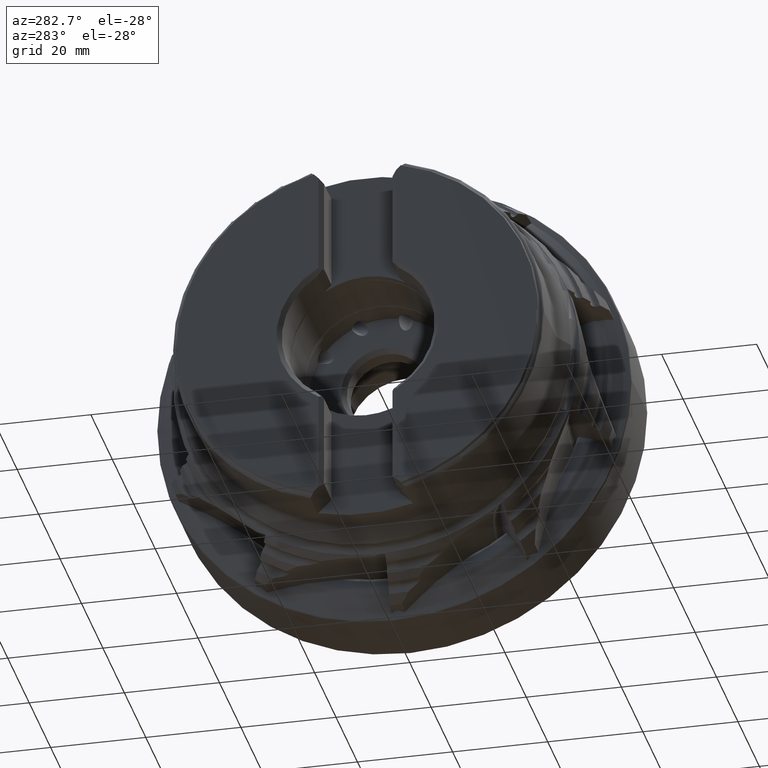
[diagram: clean part render]
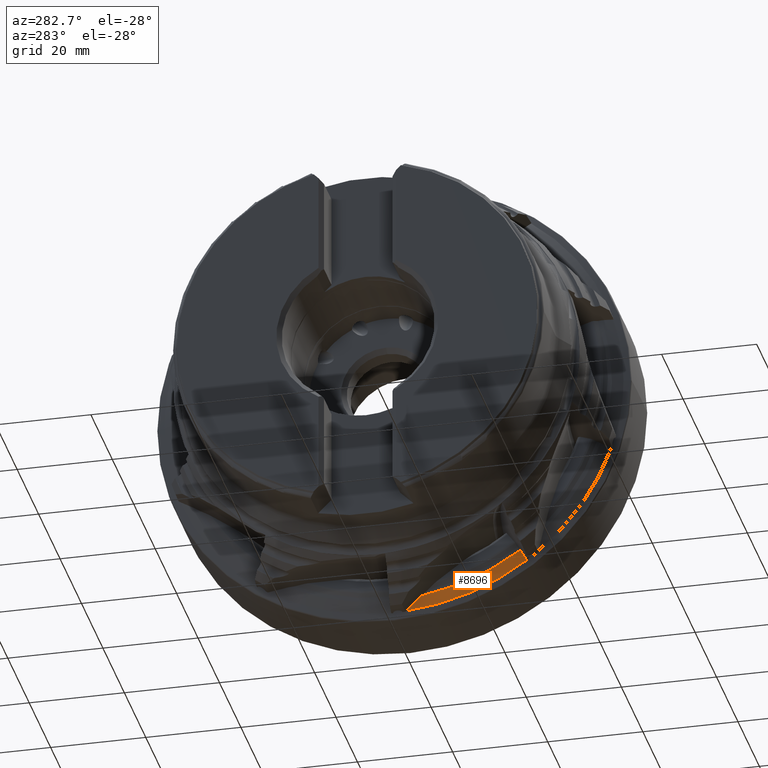
[diagram: same view with one face highlighted and labeled with its STEP entity id]
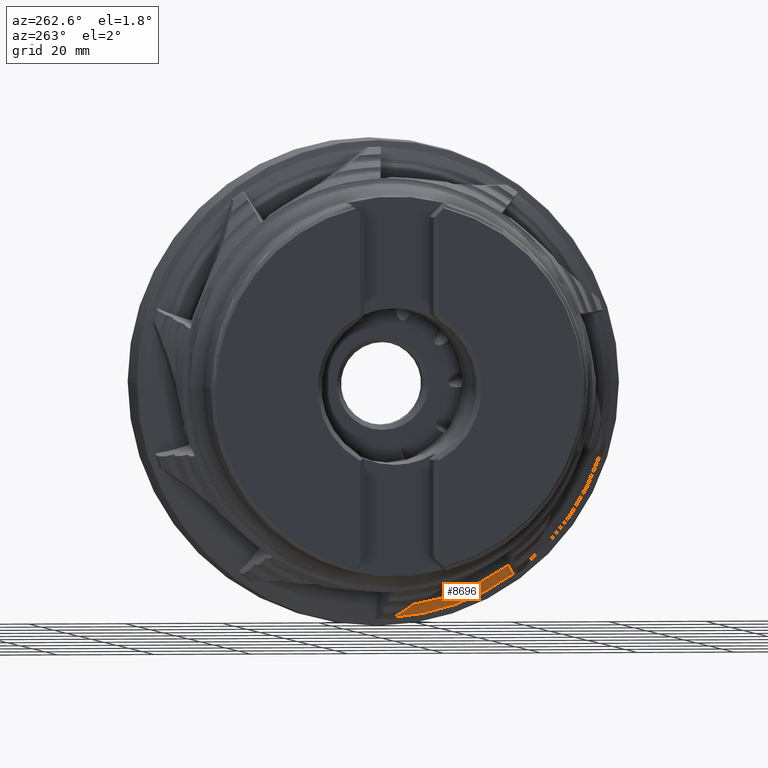
[diagram: same view with one face highlighted and labeled with its STEP entity id]
A machine part, auxiliary view. The second image highlights one B-rep face of the part: STEP entity #8696.
A second angle (auxiliary view) of the same face is appended — the face is thin or edge-on in the first view.
In plain terms, the highlighted conical surface has half-angle 62.043 deg.
Its self-contained STEP definition (entity closure, byte-faithful):
#105 = VERTEX_POINT ( 'NONE', #9441 ) ;
#1238 = CARTESIAN_POINT ( 'NONE',  ( -14.76938182322128768, -28.03654574088306006, -39.30826597944864886 ) ) ;
#1284 = CARTESIAN_POINT ( 'NONE',  ( -14.79345574564933763, -27.89425719486472488, -39.35378098058932750 ) ) ;
#1458 = CARTESIAN_POINT ( 'NONE',  ( -14.76938182322129478, 5.345225264192478146E-15, 0.0000000000000000000 ) ) ;
#2756 = CARTESIAN_POINT ( 'NONE',  ( -15.53865546071779136, -27.15432477313284565, -38.15717237038244036 ) ) ;
#3130 = AXIS2_PLACEMENT_3D ( 'NONE', #1458, #14733, #3147 ) ;
#3147 = DIRECTION ( 'NONE',  ( -3.233583993939052339E-16, 1.000000000000000000, 0.0000000000000000000 ) ) ;
#3645 = ORIENTED_EDGE ( 'NONE', *, *, #14075, .F. ) ;
#4402 = CARTESIAN_POINT ( 'NONE',  ( -15.91121431757420623, -5.936858987787736908, -45.74737255134296987 ) ) ;
#4977 = VERTEX_POINT ( 'NONE', #20917 ) ;
#5077 = EDGE_CURVE ( 'NONE', #18457, #6953, #9474, .T. ) ;
#5170 = ORIENTED_EDGE ( 'NONE', *, *, #6410, .F. ) ;
#5775 = CARTESIAN_POINT ( 'NONE',  ( -15.55390023599945337, -4.799266396920068622, -46.57388194815214177 ) ) ;
#5825 = EDGE_CURVE ( 'NONE', #105, #14316, #11689, .T. ) ;
#6009 = CARTESIAN_POINT ( 'NONE',  ( -14.76938182322129300, -2.539730142605401753, -48.21553113048170047 ) ) ;
#6167 = FACE_OUTER_BOUND ( 'NONE', #10638, .T. ) ;
#6410 = EDGE_CURVE ( 'NONE', #4977, #6953, #13018, .T. ) ;
#6512 = CARTESIAN_POINT ( 'NONE',  ( -14.78542760831979130, -27.94171288357531679, -39.33868464049250946 ) ) ;
#6953 = VERTEX_POINT ( 'NONE', #4402 ) ;
#8449 = CARTESIAN_POINT ( 'NONE',  ( -14.76938182322129478, 5.345225264192478146E-15, 0.0000000000000000000 ) ) ;
#8511 = ORIENTED_EDGE ( 'NONE', *, *, #5077, .T. ) ;
#8696 = ADVANCED_FACE ( 'NONE', ( #6167 ), #19294, .T. ) ;
#9124 = CARTESIAN_POINT ( 'NONE',  ( -14.79345574564933763, -27.89425719486472488, -39.35378098058932750 ) ) ;
#9287 = CIRCLE ( 'NONE', #11801, 48.28237433465455553 ) ;
#9429 = CARTESIAN_POINT ( 'NONE',  ( -15.91121431757420979, 4.995702086342238076E-15, 0.0000000000000000000 ) ) ;
#9441 = CARTESIAN_POINT ( 'NONE',  ( -14.76938182322128768, -28.03654574088306006, -39.30826597944864886 ) ) ;
#9474 = CIRCLE ( 'NONE', #22047, 46.13099164327864798 ) ;
#9727 = B_SPLINE_CURVE_WITH_KNOTS ( 'NONE', 3,
 ( #10848, #2756, #11421, #1284 ),
 .UNSPECIFIED., .F., .F.,
 ( 4, 4 ),
 ( 4.273344914298595208E-07, 0.002388536047694257963 ),
 .UNSPECIFIED. ) ;
#10230 = CARTESIAN_POINT ( 'NONE',  ( -14.79345574564933763, -27.89425719486472488, -39.35378098058932750 ) ) ;
#10638 = EDGE_LOOP ( 'NONE', ( #11167, #17310, #3645, #8511, #5170 ) ) ;
#10848 = CARTESIAN_POINT ( 'NONE',  ( -15.91121431757419913, -26.78434084844224827, -37.55885348764937959 ) ) ;
#11167 = ORIENTED_EDGE ( 'NONE', *, *, #16913, .F. ) ;
#11421 = CARTESIAN_POINT ( 'NONE',  ( -15.16606808066900136, -27.52429637550781649, -38.75548111286535402 ) ) ;
#11689 =( BOUNDED_CURVE ( )  B_SPLINE_CURVE ( 3, ( #1238, #18569, #6512, #10230 ),
 .UNSPECIFIED., .F., .T. ) 
 B_SPLINE_CURVE_WITH_KNOTS ( ( 4, 4 ),
 ( 1.314366200629753401, 1.317716186054049832 ),
 .UNSPECIFIED. ) 
 CURVE ( )  GEOMETRIC_REPRESENTATION_ITEM ( )  RATIONAL_B_SPLINE_CURVE ( ( 1.000000000000000000, 0.9999990648000234295, 0.9999990648000234295, 1.000000000000000000 ) ) 
 REPRESENTATION_ITEM ( '' )  );
#11801 = AXIS2_PLACEMENT_3D ( 'NONE', #8449, #20400, #17337 ) ;
#12459 = CARTESIAN_POINT ( 'NONE',  ( -15.91121431757419913, -26.78434084844224827, -37.55885348764937959 ) ) ;
#13018 = B_SPLINE_CURVE_WITH_KNOTS ( 'NONE', 3,
 ( #6009, #21117, #5775, #16029 ),
 .UNSPECIFIED., .F., .F.,
 ( 4, 4 ),
 ( 0.01988129427191073079, 0.02423280997584185623 ),
 .UNSPECIFIED. ) ;
#14075 = EDGE_CURVE ( 'NONE', #18457, #14316, #9727, .T. ) ;
#14316 = VERTEX_POINT ( 'NONE', #9124 ) ;
#14372 = DIRECTION ( 'NONE',  ( -3.008343699855511265E-16, 1.000000000000000000, 0.0000000000000000000 ) ) ;
#14733 = DIRECTION ( 'NONE',  ( 1.000000000000000000, 3.061072263916563097E-16, -0.0000000000000000000 ) ) ;
#16029 = CARTESIAN_POINT ( 'NONE',  ( -15.91121431757420623, -5.936858987787736908, -45.74737255134296987 ) ) ;
#16170 = DIRECTION ( 'NONE',  ( 1.000000000000000000, 3.061072263916563097E-16, -0.0000000000000000000 ) ) ;
#16913 = EDGE_CURVE ( 'NONE', #105, #4977, #9287, .T. ) ;
#17310 = ORIENTED_EDGE ( 'NONE', *, *, #5825, .T. ) ;
#17337 = DIRECTION ( 'NONE',  ( -3.233583993939051845E-16, 1.000000000000000000, 0.0000000000000000000 ) ) ;
#18457 = VERTEX_POINT ( 'NONE', #12459 ) ;
#18569 = CARTESIAN_POINT ( 'NONE',  ( -14.77740296000578724, -27.98914244327088241, -39.32351295925705159 ) ) ;
#19294 = CONICAL_SURFACE ( 'NONE', #3130, 48.28237433465454842, 1.082857432957254229 ) ;
#20400 = DIRECTION ( 'NONE',  ( 1.000000000000000000, 3.061072263916563097E-16, -0.0000000000000000000 ) ) ;
#20917 = CARTESIAN_POINT ( 'NONE',  ( -14.76938182322129300, -2.539730142605401753, -48.21553113048170047 ) ) ;
#21117 = CARTESIAN_POINT ( 'NONE',  ( -15.17205262869869742, -3.667167038162732595, -47.39640027821695156 ) ) ;
#22047 = AXIS2_PLACEMENT_3D ( 'NONE', #9429, #16170, #14372 ) ;